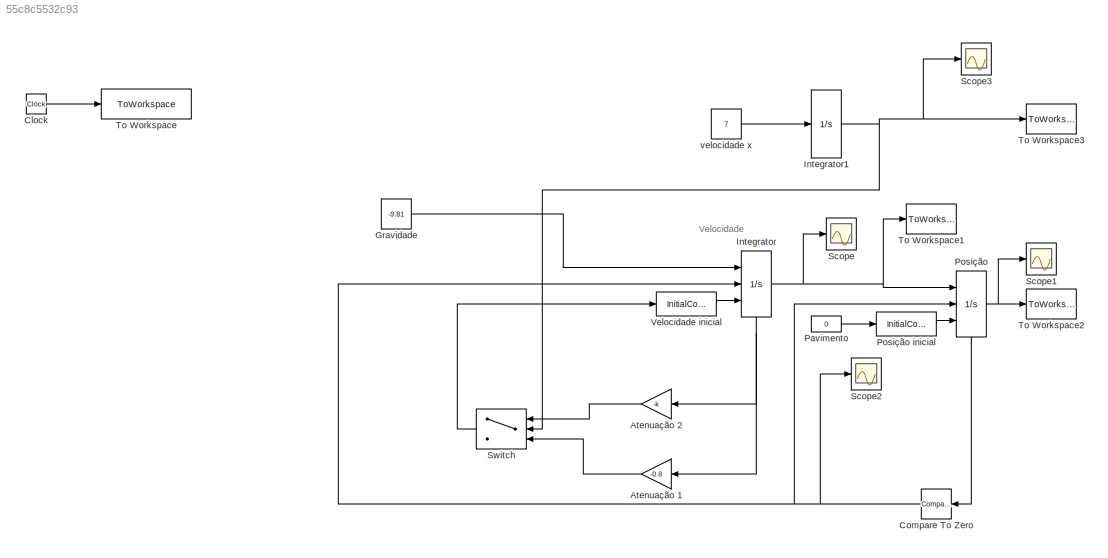
MODEL slx_55c8c5532c93
KIND model
CONFIG AbsTol = auto
CONFIG EnableMultiTasking = off
CONFIG FixedStep = auto
CONFIG MaxStep = 0.001
CONFIG MinStep = auto
CONFIG RelTol = 1e-4
CONFIG SampleTimeConstraint = Unconstrained
CONFIG SolverName = VariableStepAuto
CONFIG StartTime = 0.0
CONFIG StopTime = 15
BLOCK [Gain] Atenuação 1
  Gain = -0.8
  NameLocation = top
BLOCK [Gain] Atenuação 2
  Gain = -k
  NameLocation = top
BLOCK [Clock] Clock
BLOCK [Reference] Compare To Zero  REF=simulink/Logic and Bit
Operations/Compare
To Zero
  NameLocation = top
  Ports = [1, 1]
  SourceBlock = simulink/Logic and Bit\nOperations/Compare\nTo Zero
  SourceProductBaseCode = SL
  SourceType = Compare To Zero
BLOCK [Constant] Gravidade
  NameLocation = top
  Value = -9.81
BLOCK [Integrator] Integrator
  ExternalReset = rising
  InitialConditionSource = external
  NameLocation = top
  Ports = [3, 1, 0, 0, 1]
  ShowStatePort = on
BLOCK [Integrator] Integrator1
  NameLocation = top
  Ports = [1, 1]
BLOCK [Constant] Pavimento
  Value = 0
BLOCK [Integrator] Posição
  ExternalReset = rising
  InitialConditionSource = external
  LimitOutput = on
  LowerSaturationLimit = 0
  NameLocation = top
  Ports = [3, 1, 0, 0, 1]
  ShowStatePort = on
BLOCK [InitialCondition] Posição inicial
  Value = 10
BLOCK [Scope] Scope
  Floating = off
  NumInputPorts = 1
  Ports = [1]
  ScopeSpecificationString = Simulink.scopes.TimeScopeBlockCfg('CurrentConfiguration', extmgr.ConfigurationSet(extmgr.Configuration('Core','General UI',true),extmgr.Configuration('Core','Source UI',true),extmgr.Configuration('Sources','WiredSimulink',true),extmgr.Configuration('Visuals','Time Domain',true,'SerializedDisplays',{struct('MinYLimReal','-17.50893','MaxYLimReal','17.50893','YLabelReal','','MinYLimMag','0.00000','Ma...<+1368ch>
BLOCK [Scope] Scope1
  Floating = off
  NumInputPorts = 1
  Ports = [1]
  ScopeSpecificationString = Simulink.scopes.TimeScopeBlockCfg('CurrentConfiguration', extmgr.ConfigurationSet(extmgr.Configuration('Core','General UI',true),extmgr.Configuration('Core','Source UI',true),extmgr.Configuration('Sources','WiredSimulink',true,'DataLoggingVariableName','ScopeData1'),extmgr.Configuration('Visuals','Time Domain',true,'SerializedDisplays',{struct('MinYLimReal','-1.25','MaxYLimReal','11.25','YLabelRea...<+1381ch>
BLOCK [Scope] Scope2
  Floating = off
  NumInputPorts = 1
  Ports = [1]
  ScopeSpecificationString = Simulink.scopes.TimeScopeBlockCfg('CurrentConfiguration', extmgr.ConfigurationSet(extmgr.Configuration('Core','General UI',true),extmgr.Configuration('Core','Source UI',true),extmgr.Configuration('Sources','WiredSimulink',true,'DataLoggingVariableName','ScopeData2'),extmgr.Configuration('Visuals','Time Domain',true,'SerializedDisplays',{struct('MinYLimReal','-0.125','MaxYLimReal','1.125','YLabelRe...<+1362ch>
BLOCK [Scope] Scope3
  Floating = off
  NumInputPorts = 1
  Ports = [1]
  ScopeSpecificationString = Simulink.scopes.TimeScopeBlockCfg('CurrentConfiguration', extmgr.ConfigurationSet(extmgr.Configuration('Core','General UI',true),extmgr.Configuration('Core','Source UI',true),extmgr.Configuration('Sources','WiredSimulink',true,'DataLoggingVariableName','ScopeData1'),extmgr.Configuration('Visuals','Time Domain',true,'SerializedDisplays',{struct('MinYLimReal','-13.125','MaxYLimReal','118.125','YLabe...<+1400ch>
BLOCK [Switch] Switch
  Criteria = u2 > Threshold
  InputSameDT = off
  NameLocation = top
  SaturateOnIntegerOverflow = off
  Threshold = 20
BLOCK [ToWorkspace] To Workspace
  FixptAsFi = on
  MaxDataPoints = inf
  Ports = [1]
  SampleTime = -1
  Save2DSignal = 2-D array (concatenate along first dimension)
  VariableName = t
BLOCK [ToWorkspace] To Workspace1
  FixptAsFi = on
  MaxDataPoints = inf
  Ports = [1]
  SampleTime = -1
  Save2DSignal = 2-D array (concatenate along first dimension)
  VariableName = v
BLOCK [ToWorkspace] To Workspace2
  FixptAsFi = on
  MaxDataPoints = inf
  Ports = [1]
  SampleTime = -1
  Save2DSignal = 2-D array (concatenate along first dimension)
  VariableName = z
BLOCK [ToWorkspace] To Workspace3
  FixptAsFi = on
  MaxDataPoints = inf
  Ports = [1]
  SampleTime = -1
  Save2DSignal = 2-D array (concatenate along first dimension)
  VariableName = x
BLOCK [InitialCondition] Velocidade inicial
  Value = 0
BLOCK [Constant] velocidade x
  NameLocation = top
  Value = 7
ANNOTATION (root): Velocidade
LINE Atenuação 1:1 -> Switch:3
LINE Atenuação 2:1 -> Switch:1
LINE Clock:1 -> To Workspace:1
NET Compare To Zero:1 -> Integrator:2, Posição:2, Scope2:1
LINE Gravidade:1 -> Integrator:1
NET Integrator1:1 -> Scope3:1, Switch:2, To Workspace3:1
NET Integrator:1 -> Posição:1, Scope:1, To Workspace1:1
NET Integrator:state -> Atenuação 1:1, Atenuação 2:1
LINE Pavimento:1 -> Posição inicial:1
LINE Posição inicial:1 -> Posição:3
NET Posição:1 -> Scope1:1, To Workspace2:1
LINE Posição:state -> Compare To Zero:1
LINE Switch:1 -> Velocidade inicial:1
LINE Velocidade inicial:1 -> Integrator:3
LINE velocidade x:1 -> Integrator1:1
note: NET lines group one-source signal fan-out (src -> all destinations, sorted); 1:1 wires keep LINE
